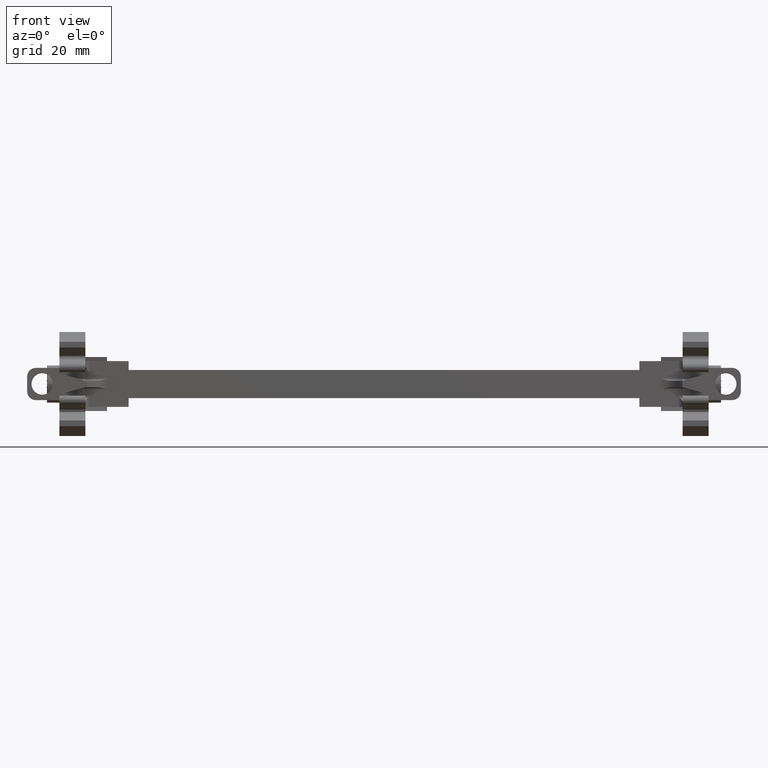
[diagram: clean part render]
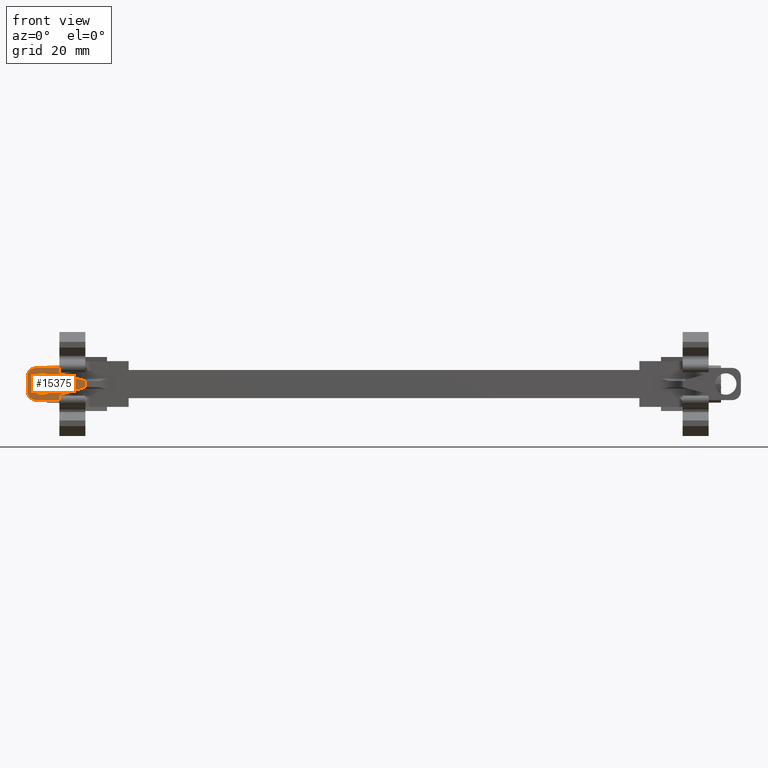
[diagram: same view with one face highlighted and labeled with its STEP entity id]
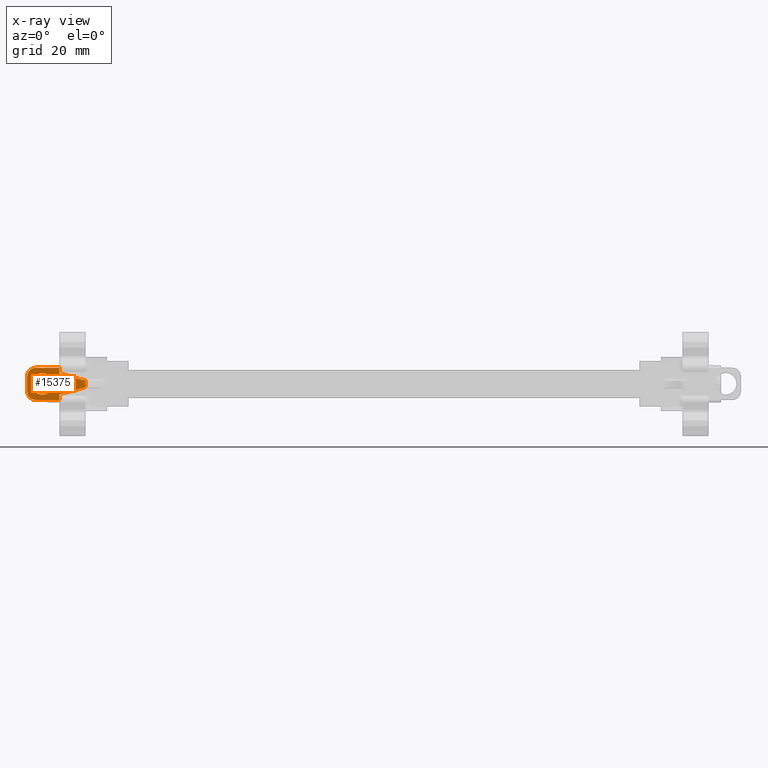
[diagram: x-ray of the same camera — body ghosted, the highlighted face saturated]
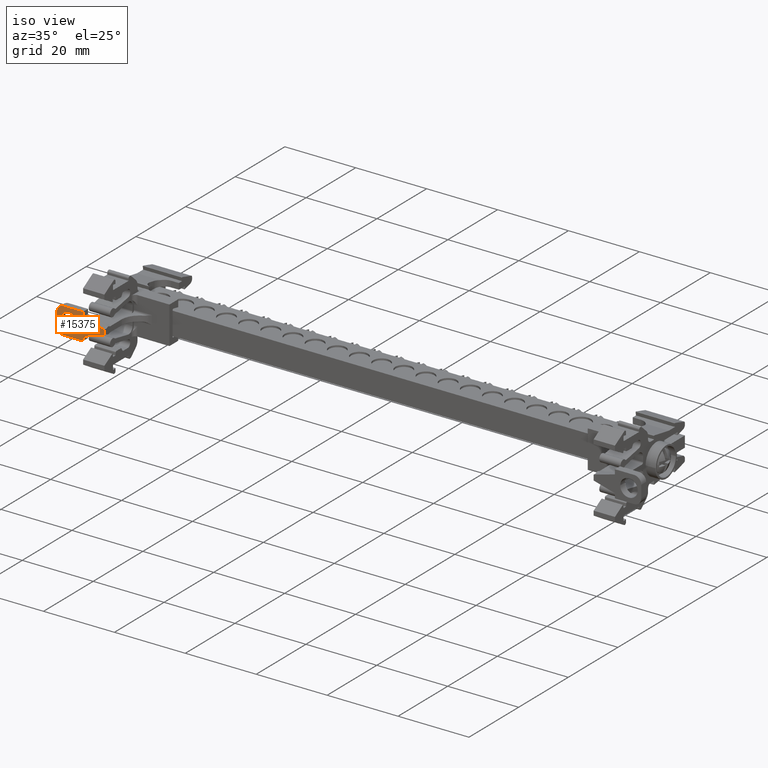
[diagram: same view with one face highlighted and labeled with its STEP entity id]
A machine part, front view. The second image highlights one B-rep face of the part: STEP entity #15375.
The next image is the same camera in x-ray: the body ghosted, the highlighted face saturated — about 0% of this face is hidden behind the body in this view.
A second angle (iso view) of the same face is appended — the face is thin or edge-on in the first view.
In plain terms, the highlighted planar face has unit normal (0, -1, 0).
Its self-contained STEP definition (entity closure, byte-faithful):
#691 = CIRCLE ( 'NONE', #694, 2.475000000000005000 ) ;
#694 = AXIS2_PLACEMENT_3D ( 'NONE', #11621, #11631, #11582 ) ;
#4623 = DIRECTION ( 'NONE',  ( 0.9640415414303835600, 0.0000000000000000000, 0.2657515877591893900 ) ) ;
#5239 = VECTOR ( 'NONE', #4623, 1000.000000000000000 ) ;
#5324 = VECTOR ( 'NONE', #26967, 1000.000000000000000 ) ;
#5503 = AXIS2_PLACEMENT_3D ( 'NONE', #26210, #26129, #26153 ) ;
#8017 = CARTESIAN_POINT ( 'NONE',  ( -197.9416458143862200, -112.7399380817986100, 216.7335480981484700 ) ) ;
#8019 = CARTESIAN_POINT ( 'NONE',  ( -203.9416458143861900, -112.7399380817987300, 219.7048630735135400 ) ) ;
#8048 = CARTESIAN_POINT ( 'NONE',  ( -203.9416458143860500, -112.7399380817986600, 218.3875323488574600 ) ) ;
#8049 = CARTESIAN_POINT ( 'NONE',  ( -209.4016458143862300, -112.7399380817988400, 212.2622331528845100 ) ) ;
#8052 = CARTESIAN_POINT ( 'NONE',  ( -203.9416458143862200, -112.7399380817987700, 212.2622331528845100 ) ) ;
#8058 = CARTESIAN_POINT ( 'NONE',  ( -211.3816458143861900, -112.7399380817988100, 214.2422331528845500 ) ) ;
#8059 = CARTESIAN_POINT ( 'NONE',  ( -197.9416458143862500, -112.7399380817987000, 215.2215480981485000 ) ) ;
#8070 = CARTESIAN_POINT ( 'NONE',  ( -211.3816458143862200, -112.7399380817987100, 217.7248630735135200 ) ) ;
#8072 = CARTESIAN_POINT ( 'NONE',  ( -209.4016458143862000, -112.7399380817987000, 219.7048630735135100 ) ) ;
#8073 = CARTESIAN_POINT ( 'NONE',  ( -203.9416458143861900, -112.7399380817987300, 213.5675638474394600 ) ) ;
#9174 = VECTOR ( 'NONE', #30105, 1000.000000000000000 ) ;
#11400 = LINE ( 'NONE', #11642, #5239 ) ;
#11582 = DIRECTION ( 'NONE',  ( -1.000000000000000000, -1.121437398611267000E-014, 0.0000000000000000000 ) ) ;
#11621 = CARTESIAN_POINT ( 'NONE',  ( -207.9016458143861100, -112.7399380817988400, 215.9835481131990200 ) ) ;
#11631 = DIRECTION ( 'NONE',  ( -1.103043697976142200E-014, 1.000000000000000000, -4.409143360392219900E-032 ) ) ;
#11642 = CARTESIAN_POINT ( 'NONE',  ( -197.9416458143862200, -112.7399380817987500, 215.2215480981485000 ) ) ;
#12141 = DIRECTION ( 'NONE',  ( -4.863477797153988500E-046, 4.409143360392221000E-032, 1.000000000000000000 ) ) ;
#12151 = CARTESIAN_POINT ( 'NONE',  ( -203.9416458143862200, -112.7399380817986700, 188.2738655272054900 ) ) ;
#12167 = LINE ( 'NONE', #12151, #23040 ) ;
#12176 = CARTESIAN_POINT ( 'NONE',  ( -207.9016458143861100, -112.7399380817988400, 215.9835481131990200 ) ) ;
#12187 = DIRECTION ( 'NONE',  ( -2.952156309049285100E-015, -3.409903515717976200E-029, 1.000000000000000000 ) ) ;
#12192 = DIRECTION ( 'NONE',  ( -1.155055206685890000E-014, 1.000000000000000000, -2.494937251448454900E-030 ) ) ;
#12194 = DIRECTION ( 'NONE',  ( -1.000000000000000000, -1.121437398611267000E-014, 0.0000000000000000000 ) ) ;
#12195 = LINE ( 'NONE', #12206, #23085 ) ;
#12206 = CARTESIAN_POINT ( 'NONE',  ( -211.3816458143862200, -112.7399380817987500, 219.7048630735135100 ) ) ;
#12215 = DIRECTION ( 'NONE',  ( -1.103043697976142200E-014, 1.000000000000000000, -4.409143360392219900E-032 ) ) ;
#12218 = DIRECTION ( 'NONE',  ( -1.000000000000000000, -1.401796748264079800E-014, 0.0000000000000000000 ) ) ;
#12221 = CARTESIAN_POINT ( 'NONE',  ( -209.4016458143862300, -112.7399380817986400, 217.7248630735135200 ) ) ;
#12235 = CARTESIAN_POINT ( 'NONE',  ( -203.9416458143862200, -112.7399380817987700, 219.7048630735135100 ) ) ;
#12236 = DIRECTION ( 'NONE',  ( -1.000000000000000000, 0.0000000000000000000, -2.308216128895730200E-015 ) ) ;
#12247 = LINE ( 'NONE', #12235, #23089 ) ;
#12261 = LINE ( 'NONE', #12268, #23080 ) ;
#12267 = DIRECTION ( 'NONE',  ( -1.155055206685890000E-014, 1.000000000000000000, -2.494938155947649800E-030 ) ) ;
#12268 = CARTESIAN_POINT ( 'NONE',  ( -203.9416458143862200, -112.7399380817988400, 212.2622331528845100 ) ) ;
#12286 = DIRECTION ( 'NONE',  ( 1.000000000000000000, 0.0000000000000000000, 2.308216128895730200E-015 ) ) ;
#12289 = DIRECTION ( 'NONE',  ( 1.000000000000000000, 1.401796748264079800E-014, 0.0000000000000000000 ) ) ;
#12305 = CARTESIAN_POINT ( 'NONE',  ( -209.4016458143862300, -112.7399380817988400, 214.2422331528845500 ) ) ;
#12308 = DIRECTION ( 'NONE',  ( -0.9640415414303847900, 0.0000000000000000000, 0.2657515877591849500 ) ) ;
#12313 = LINE ( 'NONE', #12351, #23126 ) ;
#12351 = CARTESIAN_POINT ( 'NONE',  ( -203.9416458143860500, -112.7399380817986400, 218.3875323488574600 ) ) ;
#13585 = EDGE_CURVE ( 'NONE', #31768, #31751, #12167, .T. ) ;
#13594 = EDGE_CURVE ( 'NONE', #31747, #31709, #23049, .T. ) ;
#13596 = EDGE_CURVE ( 'NONE', #16564, #16581, #23058, .T. ) ;
#13599 = EDGE_CURVE ( 'NONE', #31770, #31747, #12195, .T. ) ;
#13610 = EDGE_CURVE ( 'NONE', #31729, #31709, #12247, .T. ) ;
#13616 = EDGE_CURVE ( 'NONE', #31765, #31770, #23076, .T. ) ;
#13622 = EDGE_CURVE ( 'NONE', #31765, #31768, #12261, .T. ) ;
#13640 = EDGE_CURVE ( 'NONE', #31739, #31764, #12313, .T. ) ;
#13668 = EDGE_CURVE ( 'NONE', #31751, #31741, #11400, .T. ) ;
#13762 = EDGE_CURVE ( 'NONE', #31741, #31739, #26897, .T. ) ;
#15375 = ADVANCED_FACE ( 'NONE', ( #26127, #26194 ), #26152, .T. ) ;
#16564 = VERTEX_POINT ( 'NONE', #22026 ) ;
#16581 = VERTEX_POINT ( 'NONE', #21995 ) ;
#16841 = EDGE_LOOP ( 'NONE', ( #25149, #25225, #25196, #25151, #25232, #25188, #25190, #25198, #25147, #25194 ) ) ;
#16872 = EDGE_LOOP ( 'NONE', ( #25172, #25202 ) ) ;
#17333 = EDGE_CURVE ( 'NONE', #16581, #16564, #691, .T. ) ;
#21995 = CARTESIAN_POINT ( 'NONE',  ( -205.4266458143860900, -112.7399380817988100, 215.9835481131990200 ) ) ;
#22026 = CARTESIAN_POINT ( 'NONE',  ( -210.3766458143861100, -112.7399380817988700, 215.9835481131990200 ) ) ;
#23040 = VECTOR ( 'NONE', #12141, 1000.000000000000000 ) ;
#23049 = CIRCLE ( 'NONE', #23082, 1.980000000000009500 ) ;
#23058 = CIRCLE ( 'NONE', #23086, 2.475000000000005000 ) ;
#23065 = AXIS2_PLACEMENT_3D ( 'NONE', #12305, #12267, #12289 ) ;
#23076 = CIRCLE ( 'NONE', #23065, 1.980000000000009500 ) ;
#23080 = VECTOR ( 'NONE', #12286, 1000.000000000000000 ) ;
#23082 = AXIS2_PLACEMENT_3D ( 'NONE', #12221, #12192, #12218 ) ;
#23085 = VECTOR ( 'NONE', #12187, 1000.000000000000000 ) ;
#23086 = AXIS2_PLACEMENT_3D ( 'NONE', #12176, #12215, #12194 ) ;
#23089 = VECTOR ( 'NONE', #12236, 1000.000000000000000 ) ;
#23126 = VECTOR ( 'NONE', #12308, 1000.000000000000000 ) ;
#25147 = ORIENTED_EDGE ( 'NONE', *, *, #25152, .T. ) ;
#25149 = ORIENTED_EDGE ( 'NONE', *, *, #13594, .F. ) ;
#25151 = ORIENTED_EDGE ( 'NONE', *, *, #13622, .T. ) ;
#25152 = EDGE_CURVE ( 'NONE', #31764, #31729, #30088, .T. ) ;
#25172 = ORIENTED_EDGE ( 'NONE', *, *, #13596, .T. ) ;
#25188 = ORIENTED_EDGE ( 'NONE', *, *, #13668, .T. ) ;
#25190 = ORIENTED_EDGE ( 'NONE', *, *, #13762, .T. ) ;
#25194 = ORIENTED_EDGE ( 'NONE', *, *, #13610, .T. ) ;
#25196 = ORIENTED_EDGE ( 'NONE', *, *, #13616, .F. ) ;
#25198 = ORIENTED_EDGE ( 'NONE', *, *, #13640, .T. ) ;
#25202 = ORIENTED_EDGE ( 'NONE', *, *, #17333, .T. ) ;
#25225 = ORIENTED_EDGE ( 'NONE', *, *, #13599, .F. ) ;
#25232 = ORIENTED_EDGE ( 'NONE', *, *, #13585, .T. ) ;
#26127 = FACE_OUTER_BOUND ( 'NONE', #16841, .T. ) ;
#26129 = DIRECTION ( 'NONE',  ( 1.103043697976142200E-014, -1.000000000000000000, 4.409143360392221000E-032 ) ) ;
#26152 = PLANE ( 'NONE',  #5503 ) ;
#26153 = DIRECTION ( 'NONE',  ( 1.000000000000000000, 1.103043697976142200E-014, 0.0000000000000000000 ) ) ;
#26194 = FACE_BOUND ( 'NONE', #16872, .T. ) ;
#26210 = CARTESIAN_POINT ( 'NONE',  ( -203.9416458143860500, -112.7399380817986700, 188.2738655272054900 ) ) ;
#26897 = LINE ( 'NONE', #26904, #5324 ) ;
#26904 = CARTESIAN_POINT ( 'NONE',  ( -197.9416458143862200, -112.7399380817986000, 188.2738655272054900 ) ) ;
#26967 = DIRECTION ( 'NONE',  ( -4.863477797153988500E-046, 4.409143360392221000E-032, 1.000000000000000000 ) ) ;
#30074 = CARTESIAN_POINT ( 'NONE',  ( -203.9416458143860500, -112.7399380817986700, 188.2738655272054900 ) ) ;
#30088 = LINE ( 'NONE', #30074, #9174 ) ;
#30105 = DIRECTION ( 'NONE',  ( -4.863477797153988500E-046, 4.409143360392221000E-032, 1.000000000000000000 ) ) ;
#31709 = VERTEX_POINT ( 'NONE', #8072 ) ;
#31729 = VERTEX_POINT ( 'NONE', #8019 ) ;
#31739 = VERTEX_POINT ( 'NONE', #8017 ) ;
#31741 = VERTEX_POINT ( 'NONE', #8059 ) ;
#31747 = VERTEX_POINT ( 'NONE', #8070 ) ;
#31751 = VERTEX_POINT ( 'NONE', #8073 ) ;
#31764 = VERTEX_POINT ( 'NONE', #8048 ) ;
#31765 = VERTEX_POINT ( 'NONE', #8049 ) ;
#31768 = VERTEX_POINT ( 'NONE', #8052 ) ;
#31770 = VERTEX_POINT ( 'NONE', #8058 ) ;